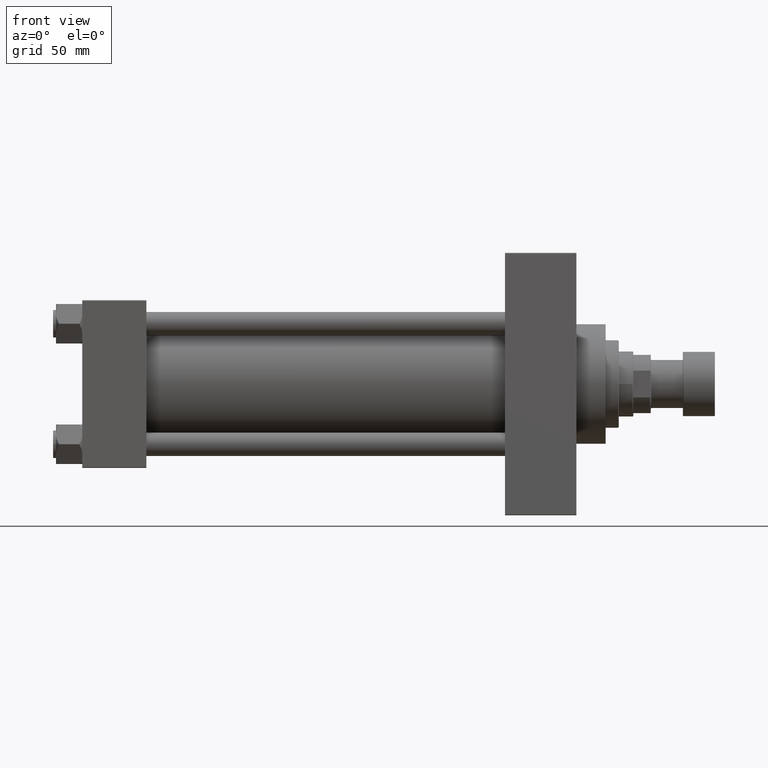
[diagram: clean part render]
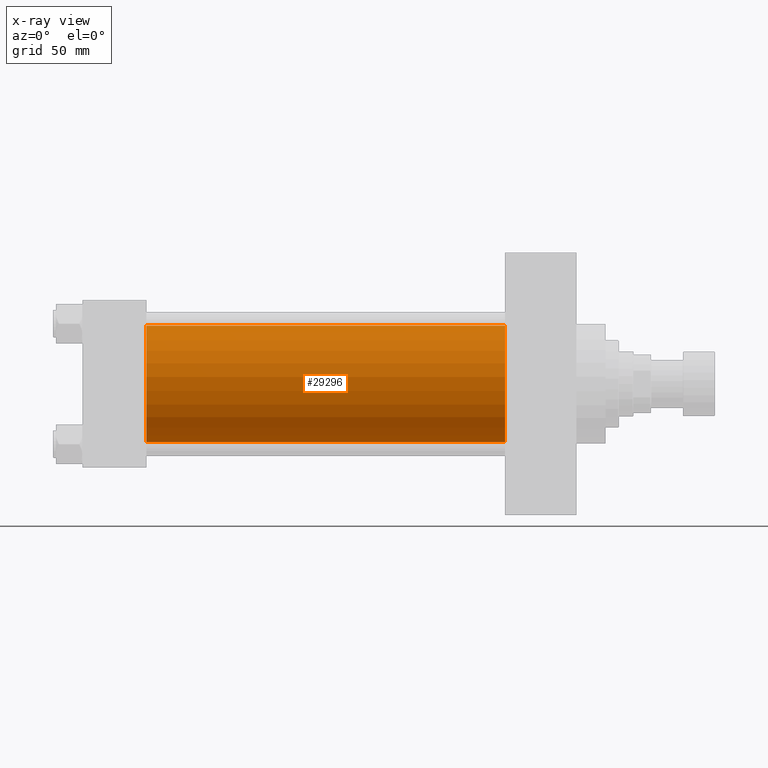
[diagram: x-ray — body ghosted, one internal face saturated and labeled with its STEP entity id]
A machine part, front view, then the same camera in x-ray: the body is ghosted and one INTERNAL B-rep face — a face not visible from any outside direction — is saturated and labeled: STEP entity #29296.
In plain terms, the highlighted cylindrical surface (partial cylindrical patch) has radius 40 mm, axis along (-1, -0, -0).
Its self-contained STEP definition (entity closure, byte-faithful):
#1272 = EDGE_CURVE ( 'NONE', #24734, #2062, #42504, .T. ) ;
#2062 = VERTEX_POINT ( 'NONE', #32461 ) ;
#5994 = VERTEX_POINT ( 'NONE', #47431 ) ;
#6041 = CARTESIAN_POINT ( 'NONE',  ( 44.00000000000000000, -2.602085213965210642E-15, 40.00000000000000000 ) ) ;
#6249 = EDGE_CURVE ( 'NONE', #24734, #38263, #33445, .T. ) ;
#8557 = ORIENTED_EDGE ( 'NONE', *, *, #11867, .T. ) ;
#10234 = CARTESIAN_POINT ( 'NONE',  ( 290.0000000000000000, -2.602085213965210642E-15, 0.000000000000000000 ) ) ;
#10842 = EDGE_LOOP ( 'NONE', ( #18135, #8557, #14214, #21361 ) ) ;
#11867 = EDGE_CURVE ( 'NONE', #2062, #5994, #37474, .T. ) ;
#12463 = DIRECTION ( 'NONE',  ( 0.000000000000000000, 0.000000000000000000, -1.000000000000000000 ) ) ;
#12554 = CARTESIAN_POINT ( 'NONE',  ( 290.0000000000000000, -2.602085213965210642E-15, 0.000000000000000000 ) ) ;
#14214 = ORIENTED_EDGE ( 'NONE', *, *, #40670, .F. ) ;
#18135 = ORIENTED_EDGE ( 'NONE', *, *, #1272, .T. ) ;
#19061 = AXIS2_PLACEMENT_3D ( 'NONE', #12554, #27465, #12463 ) ;
#21361 = ORIENTED_EDGE ( 'NONE', *, *, #6249, .F. ) ;
#24734 = VERTEX_POINT ( 'NONE', #30624 ) ;
#26227 = DIRECTION ( 'NONE',  ( -1.000000000000000000, -0.000000000000000000, -0.000000000000000000 ) ) ;
#26942 = CARTESIAN_POINT ( 'NONE',  ( 290.0000000000000000, 2.296501982624201990E-15, -40.00000000000000000 ) ) ;
#27465 = DIRECTION ( 'NONE',  ( 1.000000000000000000, 0.000000000000000000, 0.000000000000000000 ) ) ;
#27501 = AXIS2_PLACEMENT_3D ( 'NONE', #10234, #43238, #39576 ) ;
#27763 = CIRCLE ( 'NONE', #37927, 40.00000000000000000 ) ;
#28816 = FACE_OUTER_BOUND ( 'NONE', #10842, .T. ) ;
#29296 = ADVANCED_FACE ( 'NONE', ( #28816 ), #32482, .F. ) ;
#29553 = DIRECTION ( 'NONE',  ( 0.000000000000000000, 0.000000000000000000, -1.000000000000000000 ) ) ;
#30496 = CARTESIAN_POINT ( 'NONE',  ( 290.0000000000000000, -2.602085213965210642E-15, 40.00000000000000000 ) ) ;
#30624 = CARTESIAN_POINT ( 'NONE',  ( 290.0000000000000000, -2.602085213965210642E-15, 40.00000000000000000 ) ) ;
#30739 = DIRECTION ( 'NONE',  ( -1.000000000000000000, -0.000000000000000000, -0.000000000000000000 ) ) ;
#32461 = CARTESIAN_POINT ( 'NONE',  ( 290.0000000000000000, 2.296501982624201990E-15, -40.00000000000000000 ) ) ;
#32482 = CYLINDRICAL_SURFACE ( 'NONE', #27501, 40.00000000000000000 ) ;
#33215 = CARTESIAN_POINT ( 'NONE',  ( 44.00000000000000000, -2.602085213965210642E-15, 0.000000000000000000 ) ) ;
#33445 = LINE ( 'NONE', #30496, #42686 ) ;
#37474 = LINE ( 'NONE', #26942, #47450 ) ;
#37927 = AXIS2_PLACEMENT_3D ( 'NONE', #33215, #48114, #29553 ) ;
#38263 = VERTEX_POINT ( 'NONE', #6041 ) ;
#39576 = DIRECTION ( 'NONE',  ( 0.000000000000000000, 0.000000000000000000, 1.000000000000000000 ) ) ;
#40670 = EDGE_CURVE ( 'NONE', #38263, #5994, #27763, .T. ) ;
#42504 = CIRCLE ( 'NONE', #19061, 40.00000000000000000 ) ;
#42686 = VECTOR ( 'NONE', #30739, 1000.000000000000000 ) ;
#43238 = DIRECTION ( 'NONE',  ( -1.000000000000000000, -0.000000000000000000, -0.000000000000000000 ) ) ;
#47431 = CARTESIAN_POINT ( 'NONE',  ( 44.00000000000000000, 2.296501982624201990E-15, -40.00000000000000000 ) ) ;
#47450 = VECTOR ( 'NONE', #26227, 1000.000000000000000 ) ;
#48114 = DIRECTION ( 'NONE',  ( 1.000000000000000000, 0.000000000000000000, 0.000000000000000000 ) ) ;